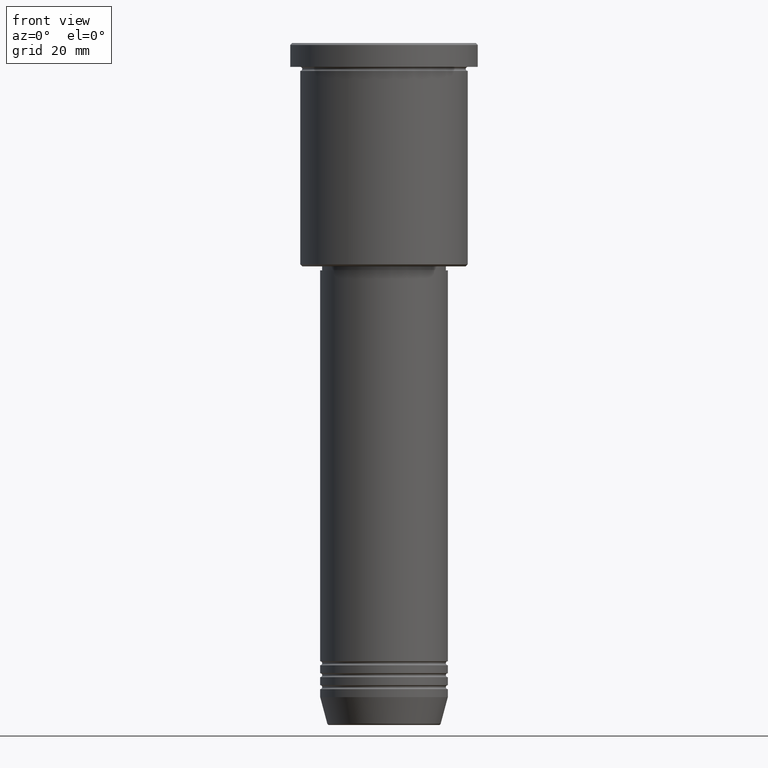
[diagram: clean part render]
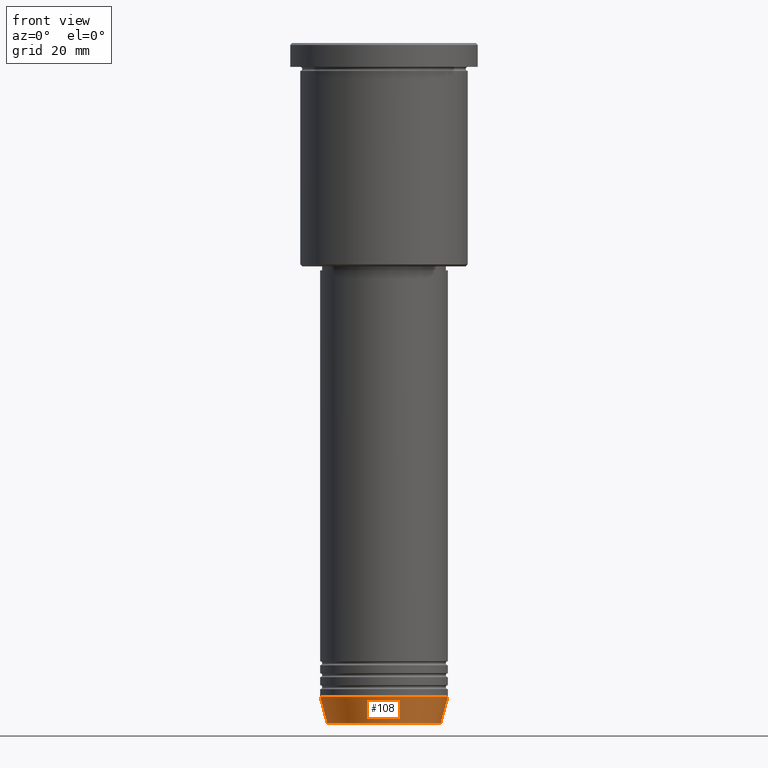
[diagram: same view with one face highlighted and labeled with its STEP entity id]
A machine part, front view. The second image highlights one B-rep face of the part: STEP entity #108.
In plain terms, the highlighted conical surface has half-angle 15 deg.
Its self-contained STEP definition (entity closure, byte-faithful):
#42 = EDGE_CURVE ( 'NONE', #221, #446, #344, .T. ) ;
#51 = EDGE_CURVE ( 'NONE', #903, #446, #917, .T. ) ;
#59 = ORIENTED_EDGE ( 'NONE', *, *, #691, .F. ) ;
#61 = CIRCLE ( 'NONE', #911, 14.22365507213719660 ) ;
#108 = ADVANCED_FACE ( 'NONE', ( #566 ), #431, .T. ) ;
#111 = ORIENTED_EDGE ( 'NONE', *, *, #42, .F. ) ;
#112 = DIRECTION ( 'NONE',  ( 1.000000000000000000, 0.000000000000000000, 0.000000000000000000 ) ) ;
#213 = CARTESIAN_POINT ( 'NONE',  ( 14.22365507213719660, 0.000000000000000000, -170.6294095225512706 ) ) ;
#221 = VERTEX_POINT ( 'NONE', #927 ) ;
#236 = DIRECTION ( 'NONE',  ( 1.000000000000000000, 0.000000000000000000, 0.000000000000000000 ) ) ;
#343 = DIRECTION ( 'NONE',  ( -0.2588190451025213501, 3.169619151431772337E-17, 0.9659258262890680902 ) ) ;
#344 = CIRCLE ( 'NONE', #507, 16.00000000000000000 ) ;
#412 = DIRECTION ( 'NONE',  ( -0.000000000000000000, -0.000000000000000000, 1.000000000000000000 ) ) ;
#431 = CONICAL_SURFACE ( 'NONE', #995, 16.00000000000000000, 0.2617993877991500740 ) ;
#446 = VERTEX_POINT ( 'NONE', #845 ) ;
#456 = DIRECTION ( 'NONE',  ( -0.000000000000000000, -0.000000000000000000, 1.000000000000000000 ) ) ;
#469 = ORIENTED_EDGE ( 'NONE', *, *, #497, .T. ) ;
#476 = DIRECTION ( 'NONE',  ( -0.000000000000000000, -0.000000000000000000, 1.000000000000000000 ) ) ;
#483 = CARTESIAN_POINT ( 'NONE',  ( 0.000000000000000000, 0.000000000000000000, -164.0000000000000000 ) ) ;
#497 = EDGE_CURVE ( 'NONE', #942, #903, #61, .T. ) ;
#507 = AXIS2_PLACEMENT_3D ( 'NONE', #548, #456, #825 ) ;
#515 = LINE ( 'NONE', #790, #818 ) ;
#548 = CARTESIAN_POINT ( 'NONE',  ( 0.000000000000000000, 0.000000000000000000, -164.0000000000000000 ) ) ;
#566 = FACE_OUTER_BOUND ( 'NONE', #1168, .T. ) ;
#691 = EDGE_CURVE ( 'NONE', #942, #221, #515, .T. ) ;
#757 = CARTESIAN_POINT ( 'NONE',  ( 0.000000000000000000, 0.000000000000000000, -170.6294095225512706 ) ) ;
#790 = CARTESIAN_POINT ( 'NONE',  ( -16.00000000000000000, 1.959434878635765131E-15, -164.0000000000000000 ) ) ;
#818 = VECTOR ( 'NONE', #343, 1000.000000000000000 ) ;
#825 = DIRECTION ( 'NONE',  ( 1.000000000000000000, 0.000000000000000000, 0.000000000000000000 ) ) ;
#845 = CARTESIAN_POINT ( 'NONE',  ( 16.00000000000000000, 0.000000000000000000, -164.0000000000000000 ) ) ;
#903 = VERTEX_POINT ( 'NONE', #213 ) ;
#911 = AXIS2_PLACEMENT_3D ( 'NONE', #757, #412, #236 ) ;
#917 = LINE ( 'NONE', #1003, #1011 ) ;
#924 = DIRECTION ( 'NONE',  ( 0.2588190451025213501, 0.000000000000000000, 0.9659258262890680902 ) ) ;
#927 = CARTESIAN_POINT ( 'NONE',  ( -16.00000000000000000, 1.959434878635765131E-15, -164.0000000000000000 ) ) ;
#942 = VERTEX_POINT ( 'NONE', #951 ) ;
#951 = CARTESIAN_POINT ( 'NONE',  ( -14.22365507213719660, 1.850665122131324126E-15, -170.6294095225512706 ) ) ;
#995 = AXIS2_PLACEMENT_3D ( 'NONE', #483, #476, #112 ) ;
#1003 = CARTESIAN_POINT ( 'NONE',  ( 16.00000000000000000, 0.000000000000000000, -164.0000000000000000 ) ) ;
#1011 = VECTOR ( 'NONE', #924, 1000.000000000000000 ) ;
#1077 = ORIENTED_EDGE ( 'NONE', *, *, #51, .T. ) ;
#1168 = EDGE_LOOP ( 'NONE', ( #59, #469, #1077, #111 ) ) ;